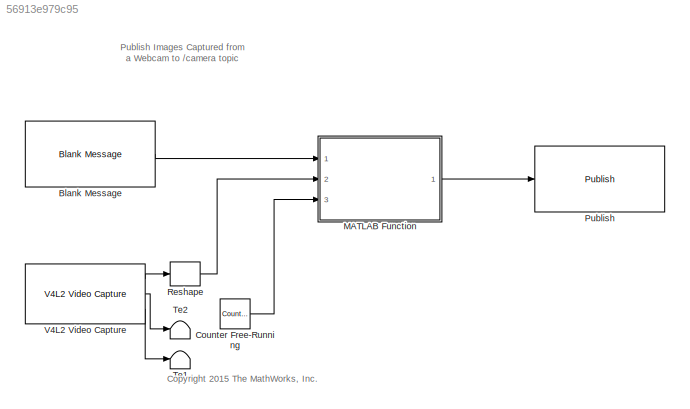
MODEL slx_56913e979c95
KIND model
CONFIG AbsTol = auto
CONFIG EnableMultiTasking = on
CONFIG FixedStep = auto
CONFIG MaxStep = auto
CONFIG MinStep = auto
CONFIG RelTol = 1e-3
CONFIG SampleTimeConstraint = Unconstrained
CONFIG Solver = FixedStepAuto
CONFIG SolverName = FixedStepAuto
CONFIG StartTime = 0.0
CONFIG StopTime = inf
WORKSPACE source: MAT-file member
WORKSPACE SL_ROS_VariableLengthArrays_MaxSizes: struct (value not decoded)
BLOCK [Reference] Blank Message  REF=robotlib/Blank Message
  Ports = [0, 1]
  SourceBlock = robotlib/Blank Message
  SourceProductBaseCode = RO
  SourceProductName = Robotics System Toolbox
  SourceType = ROS Blank Message
BLOCK [Reference] Counter Free-Running  REF=simulink/Sources/Counter
Free-Running
  Ports = [0, 1]
  SourceBlock = simulink/Sources/Counter\nFree-Running
  SourceProductBaseCode = SL
  SourceProductName = Simulink
  SourceType = Counter Free-Running
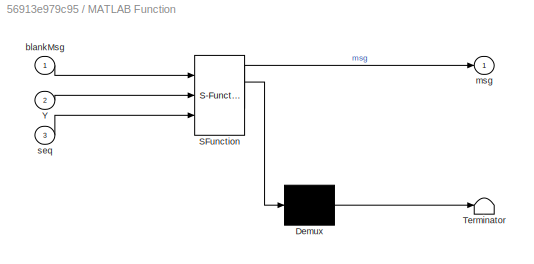
BLOCK [SubSystem] MATLAB Function
  ErrorFcn = Stateflow.Translate.translate
  PermitHierarchicalResolution = ExplicitOnly
  Ports = [3, 1]
  RequestExecContextInheritance = off
  SFBlockType = MATLAB Function
  TreatAsAtomicUnit = on
BLOCK [Demux] MATLAB Function/ Demux 
  Outputs = 1
  Ports = [1, 1]
BLOCK [S-Function] MATLAB Function/ SFunction 
  EnableBusSupport = off
  FunctionName = sf_sfun
  PortCounts = [3 2]
  Ports = [3, 2]
  SFcnIsStateOwnerBlock = off
  SFunctionDeploymentMode = off
  Tag = Stateflow S-Function rosberrypi_publish_camera 1
BLOCK [Terminator] MATLAB Function/ Terminator 
BLOCK [Inport] MATLAB Function/Y
  IconDisplay = Port number
  Port = 2
BLOCK [Inport] MATLAB Function/blankMsg
  IconDisplay = Port number
BLOCK [Outport] MATLAB Function/msg
  IconDisplay = Port number
BLOCK [Inport] MATLAB Function/seq
  IconDisplay = Port number
  Port = 3
BLOCK [Reference] Publish  REF=robotlib/Publish
  Ports = [1]
  SourceBlock = robotlib/Publish
  SourceProductBaseCode = RO
  SourceProductName = Robotics System Toolbox
  SourceType = ROS Publish
BLOCK [Reshape] Reshape
  Ports = [1, 1]
BLOCK [Terminator] Te1
BLOCK [Terminator] Te2
BLOCK [Reference] V4L2 Video Capture  REF=embdlinuxlib/V4L2 Video Capture
  Ports = [0, 3]
  SourceBlock = embdlinuxlib/V4L2 Video Capture
  SourceProductBaseCode = RASPPI
  SourceProductName = Simulink Support Package for Raspberry Pi Hardware
  SourceType = V4L2 Video Capture
ANNOTATION (root): <copyright redacted>
ANNOTATION (root): Publish Images Captured from a Webcam to /camera topic
LINE Blank Message:1 -> MATLAB Function:1
LINE Counter Free-Running:1 -> MATLAB Function:3
LINE MATLAB Function:1 -> Publish:1
LINE Reshape:1 -> MATLAB Function:2
LINE V4L2 Video Capture:1 -> Reshape:1
LINE V4L2 Video Capture:2 -> Te2:1
LINE V4L2 Video Capture:3 -> Te1:1
CHART MATLAB Function states=1 transitions=1
  STATE_LABEL 'eML_blk_kernel()'
  STATE_LABEL 'SCRIPT:\nfunction msg = fcn(blankMsg,Y,seq)\n%#codegen\n\n% To set datatype of MSG output:\n%  1. Create buses for this model: robotics.ros.createSimulinkBus(gcs)\n%  1. Click "Edit Data" in  Toolstrip to open "Ports and Data Manager"\n%  2. Select MSG and set datatype to "Bus: SL_Bus_<modelname>_<messageType>"\n% See: \n% http://www.mathworks.com/help/simulink/ug/create-structures-in-matlab-function-block...<+598ch>'
